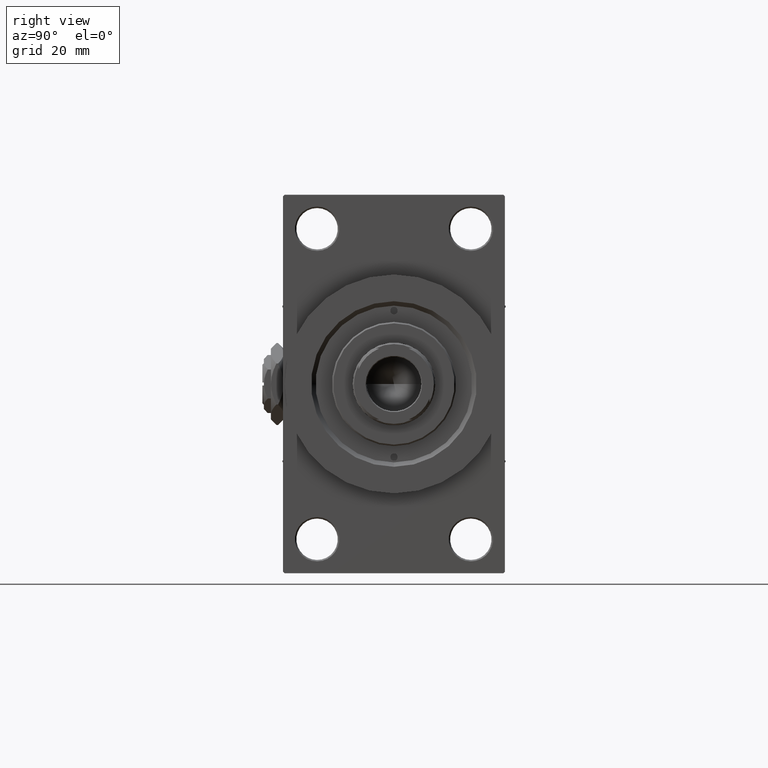
[diagram: clean part render]
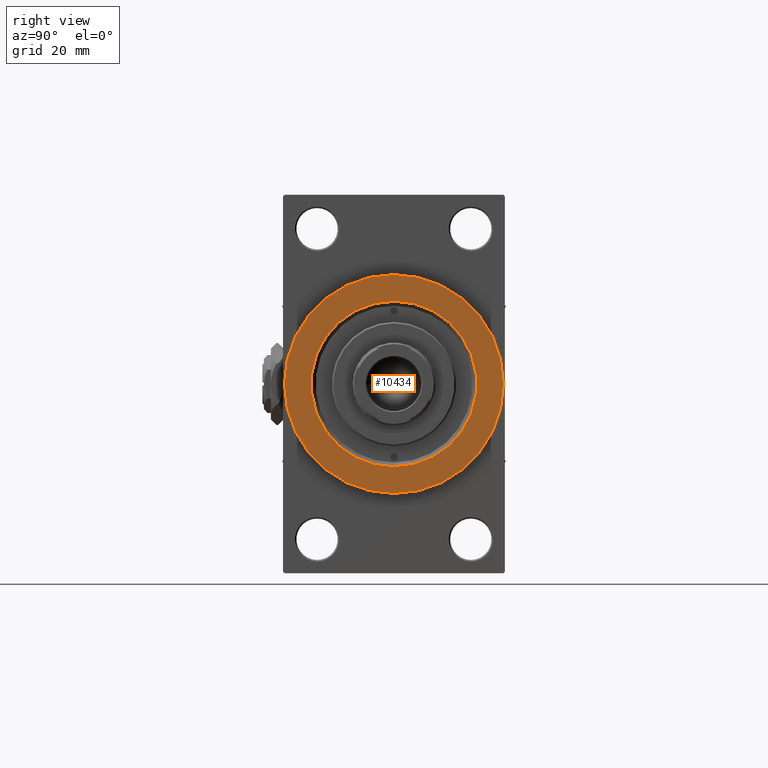
[diagram: same view with one face highlighted and labeled with its STEP entity id]
A machine part, right view. The second image highlights one B-rep face of the part: STEP entity #10434.
In plain terms, the highlighted planar face has unit normal (1, 0, 0).
Its self-contained STEP definition (entity closure, byte-faithful):
#1556 = EDGE_CURVE ( 'NONE', #35361, #47697, #39345, .T. ) ;
#1887 = EDGE_LOOP ( 'NONE', ( #38781, #18935 ) ) ;
#3010 = AXIS2_PLACEMENT_3D ( 'NONE', #49302, #31451, #16173 ) ;
#3325 = CIRCLE ( 'NONE', #27287, 37.00000000000000000 ) ;
#4531 = DIRECTION ( 'NONE',  ( 0.000000000000000000, 0.000000000000000000, -1.000000000000000000 ) ) ;
#5229 = VERTEX_POINT ( 'NONE', #40485 ) ;
#6594 = AXIS2_PLACEMENT_3D ( 'NONE', #19786, #18808, #4531 ) ;
#6641 = CARTESIAN_POINT ( 'NONE',  ( 154.0000000000000284, 0.000000000000000000, 0.000000000000000000 ) ) ;
#7045 = CARTESIAN_POINT ( 'NONE',  ( 154.0000000000000284, 0.000000000000000000, 0.000000000000000000 ) ) ;
#10434 = ADVANCED_FACE ( 'NONE', ( #33571, #34062 ), #15033, .T. ) ;
#11195 = CIRCLE ( 'NONE', #44767, 37.00000000000000000 ) ;
#15033 = PLANE ( 'NONE',  #27656 ) ;
#16173 = DIRECTION ( 'NONE',  ( 0.000000000000000000, 0.000000000000000000, -1.000000000000000000 ) ) ;
#18808 = DIRECTION ( 'NONE',  ( -1.000000000000000000, -0.000000000000000000, -0.000000000000000000 ) ) ;
#18935 = ORIENTED_EDGE ( 'NONE', *, *, #27000, .T. ) ;
#19786 = CARTESIAN_POINT ( 'NONE',  ( 154.0000000000000284, 0.000000000000000000, 0.000000000000000000 ) ) ;
#21272 = EDGE_CURVE ( 'NONE', #47697, #35361, #33377, .T. ) ;
#21883 = DIRECTION ( 'NONE',  ( 0.000000000000000000, 0.000000000000000000, -1.000000000000000000 ) ) ;
#22448 = ORIENTED_EDGE ( 'NONE', *, *, #21272, .T. ) ;
#24156 = CARTESIAN_POINT ( 'NONE',  ( 154.0000000000000284, 0.000000000000000000, -27.99999999999994316 ) ) ;
#27000 = EDGE_CURVE ( 'NONE', #5229, #28216, #11195, .T. ) ;
#27119 = CARTESIAN_POINT ( 'NONE',  ( 154.0000000000000284, 3.429011037612582176E-15, 27.99999999999994316 ) ) ;
#27287 = AXIS2_PLACEMENT_3D ( 'NONE', #6641, #44930, #21883 ) ;
#27656 = AXIS2_PLACEMENT_3D ( 'NONE', #7045, #29332, #38071 ) ;
#28216 = VERTEX_POINT ( 'NONE', #29140 ) ;
#29140 = CARTESIAN_POINT ( 'NONE',  ( 154.0000000000000284, 0.000000000000000000, 37.00000000000000000 ) ) ;
#29332 = DIRECTION ( 'NONE',  ( 1.000000000000000000, 0.000000000000000000, 0.000000000000000000 ) ) ;
#31451 = DIRECTION ( 'NONE',  ( -1.000000000000000000, -0.000000000000000000, -0.000000000000000000 ) ) ;
#31930 = ORIENTED_EDGE ( 'NONE', *, *, #1556, .T. ) ;
#33377 = CIRCLE ( 'NONE', #3010, 27.99999999999994316 ) ;
#33571 = FACE_BOUND ( 'NONE', #39980, .T. ) ;
#34062 = FACE_OUTER_BOUND ( 'NONE', #1887, .T. ) ;
#35361 = VERTEX_POINT ( 'NONE', #24156 ) ;
#36446 = DIRECTION ( 'NONE',  ( 0.000000000000000000, 0.000000000000000000, -1.000000000000000000 ) ) ;
#38071 = DIRECTION ( 'NONE',  ( 0.000000000000000000, 0.000000000000000000, -1.000000000000000000 ) ) ;
#38781 = ORIENTED_EDGE ( 'NONE', *, *, #48857, .T. ) ;
#39345 = CIRCLE ( 'NONE', #6594, 27.99999999999994316 ) ;
#39980 = EDGE_LOOP ( 'NONE', ( #31930, #22448 ) ) ;
#40203 = DIRECTION ( 'NONE',  ( 1.000000000000000000, 0.000000000000000000, 0.000000000000000000 ) ) ;
#40485 = CARTESIAN_POINT ( 'NONE',  ( 154.0000000000000284, 4.531193156845206793E-15, -37.00000000000000000 ) ) ;
#44767 = AXIS2_PLACEMENT_3D ( 'NONE', #47452, #40203, #36446 ) ;
#44930 = DIRECTION ( 'NONE',  ( 1.000000000000000000, 0.000000000000000000, 0.000000000000000000 ) ) ;
#47452 = CARTESIAN_POINT ( 'NONE',  ( 154.0000000000000284, 0.000000000000000000, 0.000000000000000000 ) ) ;
#47697 = VERTEX_POINT ( 'NONE', #27119 ) ;
#48857 = EDGE_CURVE ( 'NONE', #28216, #5229, #3325, .T. ) ;
#49302 = CARTESIAN_POINT ( 'NONE',  ( 154.0000000000000284, 0.000000000000000000, 0.000000000000000000 ) ) ;